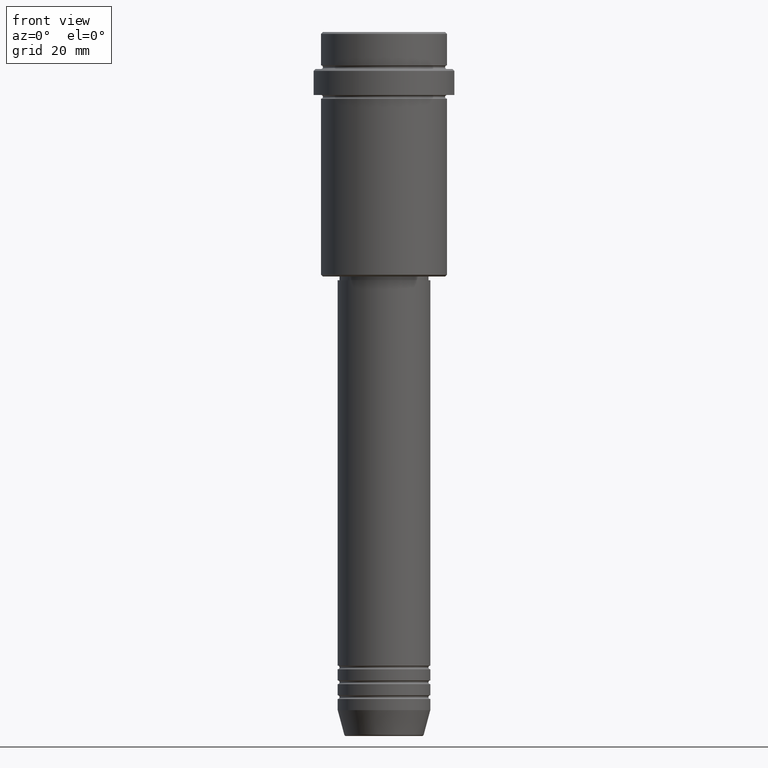
[diagram: clean part render]
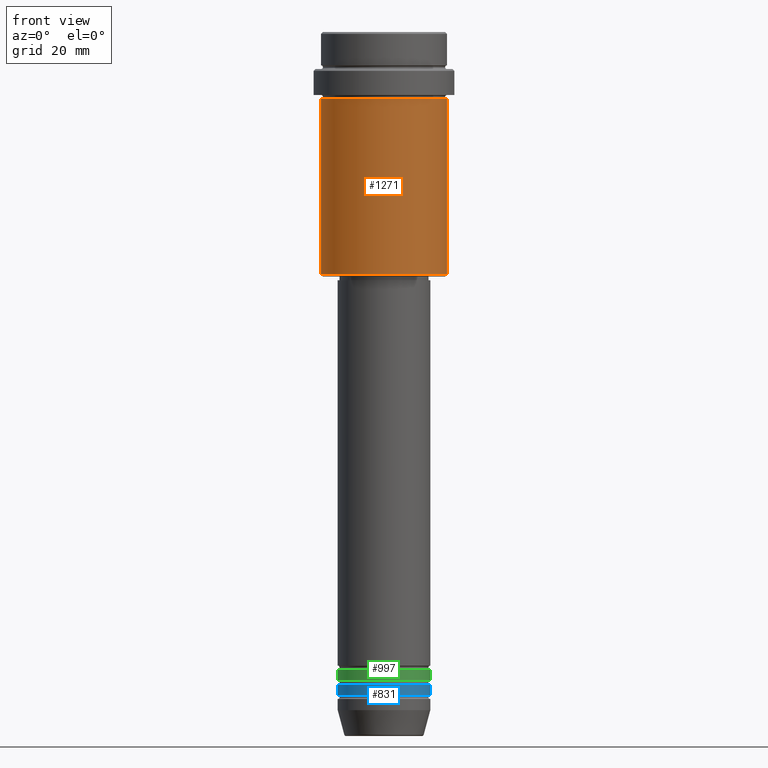
[diagram: same view with three faces highlighted in distinct colors, each labeled with its STEP entity id]
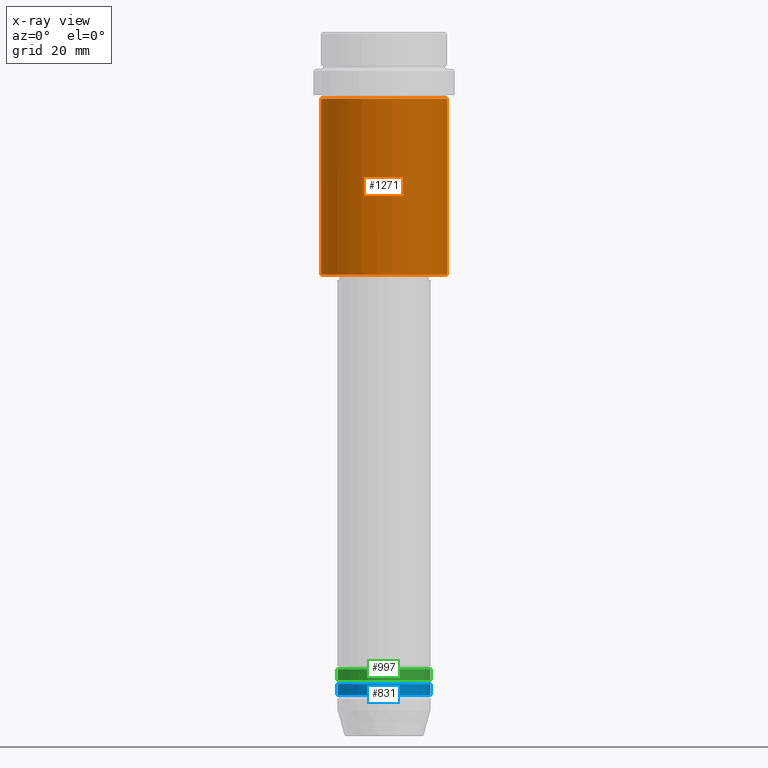
[diagram: x-ray of the same camera — body ghosted, the three highlighted faces saturated]
A machine part, front view with three faces highlighted in distinct colors.
The next image is the same camera in x-ray (body ghosted, the three faces saturated) — at least one of them is partly hidden behind the body in this view.
Their STEP definitions:

[orange] entity #1271 — the highlighted cylindrical surface (partial cylindrical patch) has radius 17 mm, axis along (-0, -0, 1).
#68 = EDGE_CURVE ( 'NONE', #339, #864, #719, .T. ) ;
#70 = DIRECTION ( 'NONE',  ( 1.000000000000000000, 0.000000000000000000, 0.000000000000000000 ) ) ;
#101 = VECTOR ( 'NONE', #403, 1000.000000000000000 ) ;
#163 = DIRECTION ( 'NONE',  ( -1.000000000000000000, 0.000000000000000000, 0.000000000000000000 ) ) ;
#177 = EDGE_CURVE ( 'NONE', #1132, #339, #515, .T. ) ;
#181 = EDGE_LOOP ( 'NONE', ( #1411, #516, #854, #379 ) ) ;
#262 = DIRECTION ( 'NONE',  ( -0.000000000000000000, -0.000000000000000000, 1.000000000000000000 ) ) ;
#272 = DIRECTION ( 'NONE',  ( -0.000000000000000000, -0.000000000000000000, 1.000000000000000000 ) ) ;
#285 = EDGE_CURVE ( 'NONE', #1132, #1295, #1036, .T. ) ;
#339 = VERTEX_POINT ( 'NONE', #1290 ) ;
#379 = ORIENTED_EDGE ( 'NONE', *, *, #68, .F. ) ;
#403 = DIRECTION ( 'NONE',  ( -0.000000000000000000, -0.000000000000000000, 1.000000000000000000 ) ) ;
#405 = EDGE_CURVE ( 'NONE', #1295, #864, #677, .T. ) ;
#454 = CARTESIAN_POINT ( 'NONE',  ( 16.99999999999998934, 0.000000000000000000, -65.50000000000000000 ) ) ;
#483 = AXIS2_PLACEMENT_3D ( 'NONE', #944, #272, #70 ) ;
#515 = LINE ( 'NONE', #847, #101 ) ;
#516 = ORIENTED_EDGE ( 'NONE', *, *, #285, .T. ) ;
#677 = LINE ( 'NONE', #1154, #1207 ) ;
#719 = CIRCLE ( 'NONE', #483, 16.99999999999997868 ) ;
#792 = DIRECTION ( 'NONE',  ( -0.000000000000000000, -0.000000000000000000, 1.000000000000000000 ) ) ;
#814 = CYLINDRICAL_SURFACE ( 'NONE', #983, 16.99999999999998934 ) ;
#847 = CARTESIAN_POINT ( 'NONE',  ( -16.99999999999998934, 2.081899558550499491E-15, 0.000000000000000000 ) ) ;
#854 = ORIENTED_EDGE ( 'NONE', *, *, #405, .T. ) ;
#864 = VERTEX_POINT ( 'NONE', #1273 ) ;
#944 = CARTESIAN_POINT ( 'NONE',  ( 0.000000000000000000, 0.000000000000000000, -18.00000000000000711 ) ) ;
#983 = AXIS2_PLACEMENT_3D ( 'NONE', #1264, #262, #1244 ) ;
#1034 = AXIS2_PLACEMENT_3D ( 'NONE', #1388, #1380, #163 ) ;
#1036 = CIRCLE ( 'NONE', #1034, 16.99999999999998934 ) ;
#1046 = FACE_OUTER_BOUND ( 'NONE', #181, .T. ) ;
#1123 = CARTESIAN_POINT ( 'NONE',  ( -16.99999999999998934, 2.081899558550499491E-15, -65.50000000000000000 ) ) ;
#1132 = VERTEX_POINT ( 'NONE', #1123 ) ;
#1154 = CARTESIAN_POINT ( 'NONE',  ( 16.99999999999998934, 0.000000000000000000, 0.000000000000000000 ) ) ;
#1207 = VECTOR ( 'NONE', #792, 1000.000000000000000 ) ;
#1244 = DIRECTION ( 'NONE',  ( 1.000000000000000000, 0.000000000000000000, 0.000000000000000000 ) ) ;
#1264 = CARTESIAN_POINT ( 'NONE',  ( 0.000000000000000000, 0.000000000000000000, 0.000000000000000000 ) ) ;
#1271 = ADVANCED_FACE ( 'NONE', ( #1046 ), #814, .T. ) ;
#1273 = CARTESIAN_POINT ( 'NONE',  ( 16.99999999999997868, 0.000000000000000000, -18.00000000000000711 ) ) ;
#1290 = CARTESIAN_POINT ( 'NONE',  ( -16.99999999999997868, 2.081899558550498702E-15, -18.00000000000000711 ) ) ;
#1295 = VERTEX_POINT ( 'NONE', #454 ) ;
#1380 = DIRECTION ( 'NONE',  ( -0.000000000000000000, -0.000000000000000000, 1.000000000000000000 ) ) ;
#1388 = CARTESIAN_POINT ( 'NONE',  ( 0.000000000000000000, 0.000000000000000000, -65.50000000000000000 ) ) ;
#1411 = ORIENTED_EDGE ( 'NONE', *, *, #177, .F. ) ;

[blue] entity #831 — the highlighted cylindrical surface (partial cylindrical patch) has radius 12.5 mm, axis along (-0, -0, 1).
#37 = CARTESIAN_POINT ( 'NONE',  ( 0.000000000000000000, 0.000000000000000000, 0.000000000000000000 ) ) ;
#59 = ORIENTED_EDGE ( 'NONE', *, *, #1118, .F. ) ;
#64 = EDGE_LOOP ( 'NONE', ( #59, #729, #966, #426 ) ) ;
#141 = EDGE_CURVE ( 'NONE', #1175, #1337, #1055, .T. ) ;
#221 = DIRECTION ( 'NONE',  ( -0.000000000000000000, -0.000000000000000000, 1.000000000000000000 ) ) ;
#235 = CIRCLE ( 'NONE', #649, 12.50000000000000000 ) ;
#248 = CARTESIAN_POINT ( 'NONE',  ( 12.50000000000000000, 0.000000000000000000, -178.9999999999999147 ) ) ;
#328 = DIRECTION ( 'NONE',  ( -0.000000000000000000, -0.000000000000000000, 1.000000000000000000 ) ) ;
#355 = DIRECTION ( 'NONE',  ( 1.000000000000000000, 0.000000000000000000, 0.000000000000000000 ) ) ;
#361 = FACE_OUTER_BOUND ( 'NONE', #64, .T. ) ;
#370 = DIRECTION ( 'NONE',  ( -0.000000000000000000, -0.000000000000000000, 1.000000000000000000 ) ) ;
#396 = CARTESIAN_POINT ( 'NONE',  ( 12.50000000000000000, 0.000000000000000000, -175.9999999999998863 ) ) ;
#426 = ORIENTED_EDGE ( 'NONE', *, *, #967, .F. ) ;
#521 = DIRECTION ( 'NONE',  ( -0.000000000000000000, -0.000000000000000000, 1.000000000000000000 ) ) ;
#638 = DIRECTION ( 'NONE',  ( -0.000000000000000000, -0.000000000000000000, 1.000000000000000000 ) ) ;
#649 = AXIS2_PLACEMENT_3D ( 'NONE', #1322, #328, #1213 ) ;
#651 = CARTESIAN_POINT ( 'NONE',  ( 0.000000000000000000, 0.000000000000000000, -178.9999999999999147 ) ) ;
#720 = CYLINDRICAL_SURFACE ( 'NONE', #1140, 12.50000000000000000 ) ;
#729 = ORIENTED_EDGE ( 'NONE', *, *, #1167, .T. ) ;
#782 = CIRCLE ( 'NONE', #1409, 12.50000000000000000 ) ;
#831 = ADVANCED_FACE ( 'NONE', ( #361 ), #720, .T. ) ;
#859 = VECTOR ( 'NONE', #638, 1000.000000000000000 ) ;
#941 = CARTESIAN_POINT ( 'NONE',  ( -12.50000000000000000, 1.530808498934191521E-15, -178.9999999999999147 ) ) ;
#966 = ORIENTED_EDGE ( 'NONE', *, *, #141, .T. ) ;
#967 = EDGE_CURVE ( 'NONE', #992, #1337, #235, .T. ) ;
#992 = VERTEX_POINT ( 'NONE', #1006 ) ;
#996 = DIRECTION ( 'NONE',  ( 1.000000000000000000, 0.000000000000000000, 0.000000000000000000 ) ) ;
#1006 = CARTESIAN_POINT ( 'NONE',  ( -12.50000000000000000, 1.530808498934191521E-15, -175.9999999999998863 ) ) ;
#1055 = LINE ( 'NONE', #1064, #859 ) ;
#1064 = CARTESIAN_POINT ( 'NONE',  ( 12.50000000000000000, 0.000000000000000000, 0.000000000000000000 ) ) ;
#1100 = LINE ( 'NONE', #1303, #1122 ) ;
#1118 = EDGE_CURVE ( 'NONE', #1393, #992, #1100, .T. ) ;
#1122 = VECTOR ( 'NONE', #521, 1000.000000000000000 ) ;
#1140 = AXIS2_PLACEMENT_3D ( 'NONE', #37, #370, #355 ) ;
#1167 = EDGE_CURVE ( 'NONE', #1393, #1175, #782, .T. ) ;
#1175 = VERTEX_POINT ( 'NONE', #248 ) ;
#1213 = DIRECTION ( 'NONE',  ( 1.000000000000000000, 0.000000000000000000, 0.000000000000000000 ) ) ;
#1303 = CARTESIAN_POINT ( 'NONE',  ( -12.50000000000000000, 1.530808498934191521E-15, 0.000000000000000000 ) ) ;
#1322 = CARTESIAN_POINT ( 'NONE',  ( 0.000000000000000000, 0.000000000000000000, -175.9999999999998863 ) ) ;
#1337 = VERTEX_POINT ( 'NONE', #396 ) ;
#1393 = VERTEX_POINT ( 'NONE', #941 ) ;
#1409 = AXIS2_PLACEMENT_3D ( 'NONE', #651, #221, #996 ) ;

[green] entity #997 — the highlighted cylindrical surface (partial cylindrical patch) has radius 12.5 mm, axis along (-0, -0, 1).
#11 = FACE_OUTER_BOUND ( 'NONE', #117, .T. ) ;
#58 = VECTOR ( 'NONE', #419, 1000.000000000000000 ) ;
#117 = EDGE_LOOP ( 'NONE', ( #176, #882, #643, #556 ) ) ;
#126 = AXIS2_PLACEMENT_3D ( 'NONE', #225, #1066, #553 ) ;
#168 = AXIS2_PLACEMENT_3D ( 'NONE', #258, #922, #690 ) ;
#176 = ORIENTED_EDGE ( 'NONE', *, *, #257, .F. ) ;
#225 = CARTESIAN_POINT ( 'NONE',  ( 0.000000000000000000, 0.000000000000000000, 0.000000000000000000 ) ) ;
#257 = EDGE_CURVE ( 'NONE', #849, #1214, #953, .T. ) ;
#258 = CARTESIAN_POINT ( 'NONE',  ( 0.000000000000000000, 0.000000000000000000, -174.9999999999998863 ) ) ;
#419 = DIRECTION ( 'NONE',  ( -0.000000000000000000, -0.000000000000000000, 1.000000000000000000 ) ) ;
#517 = CARTESIAN_POINT ( 'NONE',  ( 12.50000000000000000, 0.000000000000000000, 0.000000000000000000 ) ) ;
#540 = VERTEX_POINT ( 'NONE', #1090 ) ;
#553 = DIRECTION ( 'NONE',  ( 1.000000000000000000, 0.000000000000000000, 0.000000000000000000 ) ) ;
#556 = ORIENTED_EDGE ( 'NONE', *, *, #1067, .F. ) ;
#565 = DIRECTION ( 'NONE',  ( 1.000000000000000000, 0.000000000000000000, 0.000000000000000000 ) ) ;
#568 = CARTESIAN_POINT ( 'NONE',  ( -12.50000000000000000, 1.530808498934191521E-15, -171.9999999999999147 ) ) ;
#643 = ORIENTED_EDGE ( 'NONE', *, *, #938, .T. ) ;
#690 = DIRECTION ( 'NONE',  ( 1.000000000000000000, 0.000000000000000000, 0.000000000000000000 ) ) ;
#705 = CARTESIAN_POINT ( 'NONE',  ( 12.50000000000000000, 0.000000000000000000, -171.9999999999999147 ) ) ;
#768 = LINE ( 'NONE', #517, #58 ) ;
#780 = AXIS2_PLACEMENT_3D ( 'NONE', #789, #1238, #565 ) ;
#789 = CARTESIAN_POINT ( 'NONE',  ( 0.000000000000000000, 0.000000000000000000, -171.9999999999999147 ) ) ;
#810 = CARTESIAN_POINT ( 'NONE',  ( -12.50000000000000000, 1.530808498934191521E-15, -174.9999999999998863 ) ) ;
#835 = VECTOR ( 'NONE', #947, 1000.000000000000000 ) ;
#849 = VERTEX_POINT ( 'NONE', #810 ) ;
#882 = ORIENTED_EDGE ( 'NONE', *, *, #1178, .T. ) ;
#922 = DIRECTION ( 'NONE',  ( -0.000000000000000000, -0.000000000000000000, 1.000000000000000000 ) ) ;
#938 = EDGE_CURVE ( 'NONE', #540, #1191, #768, .T. ) ;
#947 = DIRECTION ( 'NONE',  ( -0.000000000000000000, -0.000000000000000000, 1.000000000000000000 ) ) ;
#953 = LINE ( 'NONE', #1112, #835 ) ;
#997 = ADVANCED_FACE ( 'NONE', ( #11 ), #1329, .T. ) ;
#1066 = DIRECTION ( 'NONE',  ( -0.000000000000000000, -0.000000000000000000, 1.000000000000000000 ) ) ;
#1067 = EDGE_CURVE ( 'NONE', #1214, #1191, #1095, .T. ) ;
#1090 = CARTESIAN_POINT ( 'NONE',  ( 12.50000000000000000, 0.000000000000000000, -174.9999999999998863 ) ) ;
#1095 = CIRCLE ( 'NONE', #780, 12.50000000000000000 ) ;
#1112 = CARTESIAN_POINT ( 'NONE',  ( -12.50000000000000000, 1.530808498934191521E-15, 0.000000000000000000 ) ) ;
#1178 = EDGE_CURVE ( 'NONE', #849, #540, #1278, .T. ) ;
#1191 = VERTEX_POINT ( 'NONE', #705 ) ;
#1214 = VERTEX_POINT ( 'NONE', #568 ) ;
#1238 = DIRECTION ( 'NONE',  ( -0.000000000000000000, -0.000000000000000000, 1.000000000000000000 ) ) ;
#1278 = CIRCLE ( 'NONE', #168, 12.50000000000000000 ) ;
#1329 = CYLINDRICAL_SURFACE ( 'NONE', #126, 12.50000000000000000 ) ;